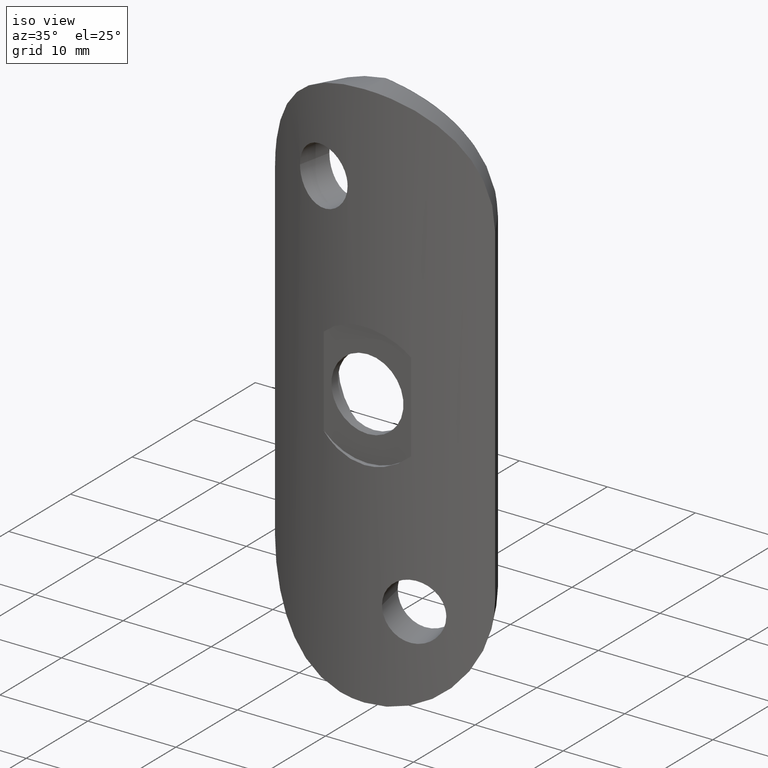
[diagram: clean part render]
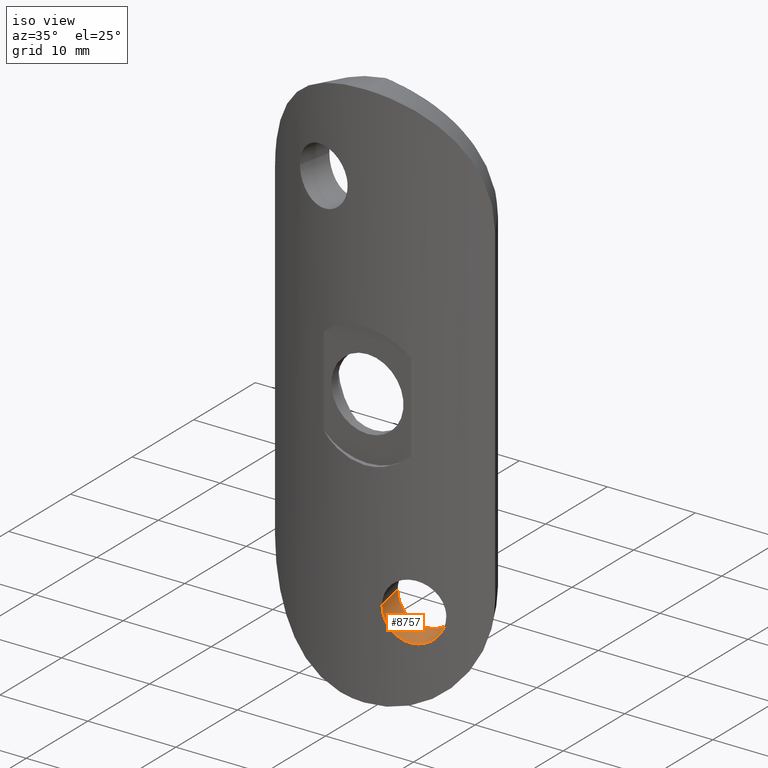
[diagram: same view with one face highlighted and labeled with its STEP entity id]
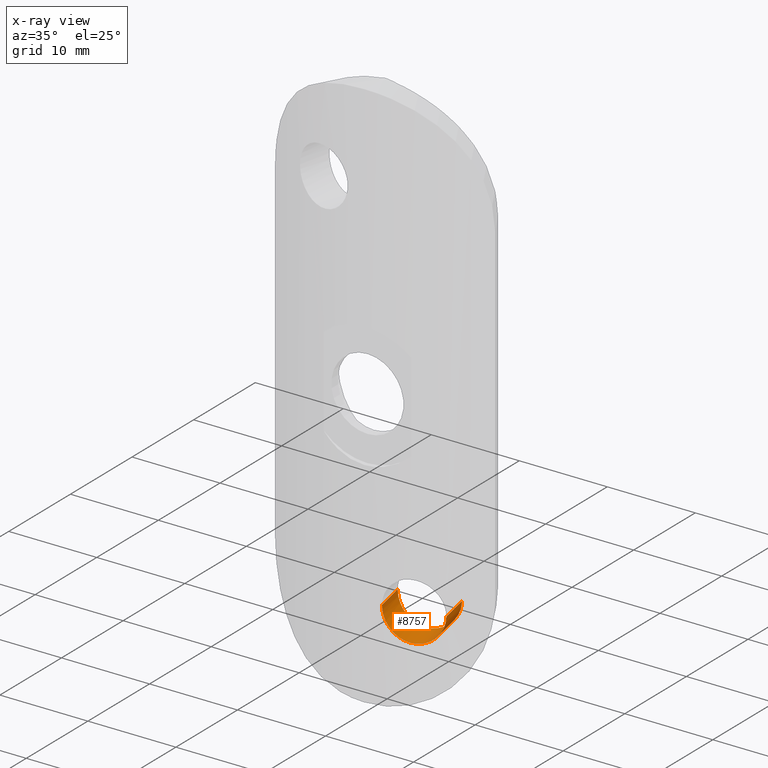
[diagram: x-ray of the same camera — body ghosted, the highlighted face saturated]
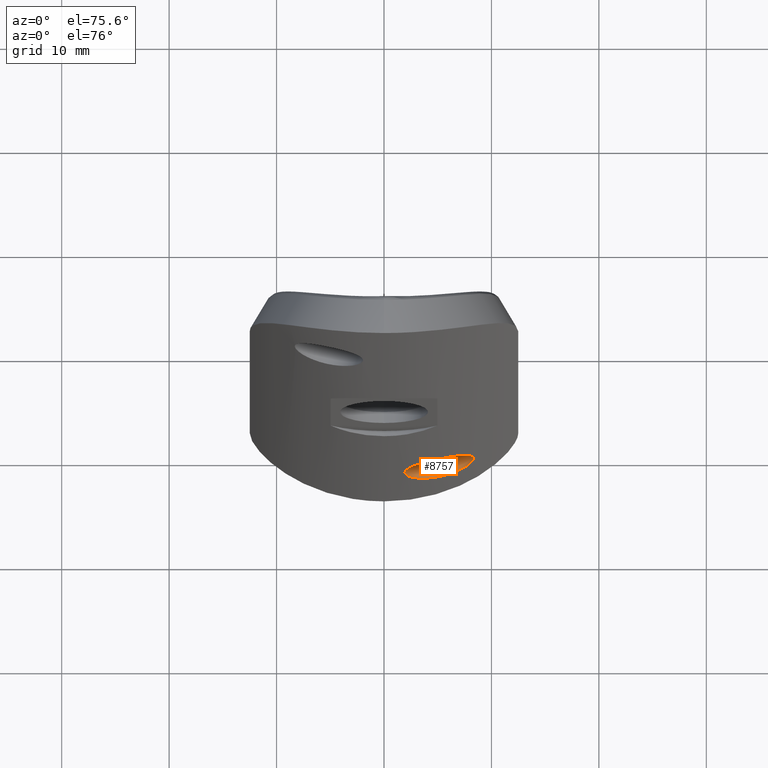
[diagram: same view with one face highlighted and labeled with its STEP entity id]
A machine part, iso view. The second image highlights one B-rep face of the part: STEP entity #8757.
The next image is the same camera in x-ray: the body ghosted, the highlighted face saturated — about 0% of this face is hidden behind the body in this view.
A second angle (auxiliary view) of the same face is appended — the face is thin or edge-on in the first view.
In plain terms, the highlighted cylindrical surface (edge-blend (fillet) strip) has radius 3.25 mm, axis along (0.2079, -0.9781, -0).
Its self-contained STEP definition (entity closure, byte-faithful):
#132 = CARTESIAN_POINT ( 'NONE',  ( 1.176646166158987095, 0.03267839806690862881, -21.00000000000000000 ) ) ;
#165 = VERTEX_POINT ( 'NONE', #10180 ) ;
#315 = CARTESIAN_POINT ( 'NONE',  ( 5.985913028591760110, 0.8618509121575981258, -23.82168527277884706 ) ) ;
#358 = CARTESIAN_POINT ( 'NONE',  ( 6.325385969303321865, 0.9648584031514629844, -23.58593826984648345 ) ) ;
#368 = LINE ( 'NONE', #8668, #11743 ) ;
#395 = CARTESIAN_POINT ( 'NONE',  ( 2.799904229232411446, 0.1849622261223008712, -23.81935026925231469 ) ) ;
#440 = CARTESIAN_POINT ( 'NONE',  ( 7.221543648351119948, 1.267713513683921267, -22.44337316984880104 ) ) ;
#473 = CARTESIAN_POINT ( 'NONE',  ( 4.195604032338668077, 0.4182042844645871837, -24.24986136147226290 ) ) ;
#539 = CARTESIAN_POINT ( 'NONE',  ( 7.545961563784556958, -2.529540464008687373, -23.14883876920004013 ) ) ;
#625 = CARTESIAN_POINT ( 'NONE',  ( 2.284191207626489639, -3.595144967301691974, -22.44085019494669808 ) ) ;
#841 = CARTESIAN_POINT ( 'NONE',  ( 7.258720291858644202, -2.618975760508660766, -23.44827756851971401 ) ) ;
#1168 = CARTESIAN_POINT ( 'NONE',  ( 1.176646166158987317, 0.03267839806690713000, -21.21222076151667224 ) ) ;
#1295 = CARTESIAN_POINT ( 'NONE',  ( 7.534605570928735396, 1.384104388382295658, -21.00000000000000000 ) ) ;
#1341 = CARTESIAN_POINT ( 'NONE',  ( 3.578598974599062288, 0.3031861338287534235, -24.14556051984719076 ) ) ;
#1485 = EDGE_CURVE ( 'NONE', #165, #12617, #8535, .T. ) ;
#1560 = CARTESIAN_POINT ( 'NONE',  ( 2.756030931761662472, -3.547474006479567343, -23.14673639676356842 ) ) ;
#1767 = CARTESIAN_POINT ( 'NONE',  ( 7.902561826490215324, -2.412996285057339207, -22.62868869679352812 ) ) ;
#1828 = CARTESIAN_POINT ( 'NONE',  ( 5.999910124638653031, -2.967232741735244428, -24.14574157051060510 ) ) ;
#1871 = CARTESIAN_POINT ( 'NONE',  ( 4.149097697526912931, -3.352675014377182183, -24.08432241776692706 ) ) ;
#2243 = EDGE_CURVE ( 'NONE', #10604, #12617, #368, .T. ) ;
#2304 = CARTESIAN_POINT ( 'NONE',  ( 7.435133305532182213, 1.346521798423605754, -21.84735998377315980 ) ) ;
#2347 = CARTESIAN_POINT ( 'NONE',  ( 3.987620783681367964, 0.3773661400878314809, -24.22854837659998140 ) ) ;
#2518 = CARTESIAN_POINT ( 'NONE',  ( 6.577282586544979992, -2.816404307680124397, -23.92112018029343545 ) ) ;
#2526 = CARTESIAN_POINT ( 'NONE',  ( 2.988850380811756580, 7.138564505706376018, -21.00000000000000000 ) ) ;
#2571 = DIRECTION ( 'NONE',  ( 0.2079116908177526257, -0.9781476007338070211, -0.000000000000000000 ) ) ;
#2634 = DIRECTION ( 'NONE',  ( 0.2079116908177526257, -0.9781476007338070211, -0.000000000000000000 ) ) ;
#2820 = CARTESIAN_POINT ( 'NONE',  ( 4.970583537830977505, -3.199761078008886983, -24.25007802996918471 ) ) ;
#2864 = CARTESIAN_POINT ( 'NONE',  ( 3.221997155239388899, -3.491291078658648850, -23.58435450196687810 ) ) ;
#2973 = ORIENTED_EDGE ( 'NONE', *, *, #1485, .F. ) ;
#3119 = B_SPLINE_CURVE_WITH_KNOTS ( 'NONE', 3,
 ( #132, #1168, #10244, #8254, #12204, #3430, #6371, #11162, #6208, #10164, #12131, #395, #5376, #10202, #1341, #2347, #473, #12084, #3312, #7229, #8335, #7308, #315, #358, #9168, #7348, #11203, #11322, #440, #11284, #2304, #9286, #10292, #1295 ),
 .UNSPECIFIED., .F., .F.,
 ( 4, 2, 2, 2, 2, 2, 2, 2, 2, 2, 2, 2, 2, 2, 2, 2, 4 ),
 ( 0.01017597693529389245, 0.01081181878188314412, 0.01144766062847239405, 0.01208350247506164571, 0.01271934432165089737, 0.01335518616824014904, 0.01399102801482940070, 0.01462686986141865063, 0.01526271170800790056, 0.01589855355459715222, 0.01653439540118640041, 0.01717023724777565208, 0.01780607909436490027, 0.01844192094095414847, 0.01907776278754340360, 0.01971360463413265179, 0.02034944648072189999 ),
 .UNSPECIFIED. ) ;
#3147 = DIRECTION ( 'NONE',  ( 0.2079116908177526257, -0.9781476007338070211, -0.000000000000000000 ) ) ;
#3312 = CARTESIAN_POINT ( 'NONE',  ( 4.821778409646167773, 0.5545708960233531881, -24.22919306354635793 ) ) ;
#3430 = CARTESIAN_POINT ( 'NONE',  ( 1.507974647129322276, 0.05354142547088013709, -22.43934667913372394 ) ) ;
#3509 = CARTESIAN_POINT ( 'NONE',  ( 3.058423131052784960, -3.511924735836546851, -23.44985879542735674 ) ) ;
#3545 = CARTESIAN_POINT ( 'NONE',  ( 7.677180134385636734, -2.487232471604329476, -22.98182299338827406 ) ) ;
#3584 = CARTESIAN_POINT ( 'NONE',  ( 2.058790652408607702, -3.614776693185831835, -21.84477542463335098 ) ) ;
#3852 = CARTESIAN_POINT ( 'NONE',  ( 3.759832274280712205, -3.415290437744620711, -23.92128727752011841 ) ) ;
#4484 = CARTESIAN_POINT ( 'NONE',  ( 2.120598218914843791, -3.609671634595242651, -22.04738836260126789 ) ) ;
#5376 = CARTESIAN_POINT ( 'NONE',  ( 2.985103256080854806, 0.2102872747211994575, -23.91931735677275483 ) ) ;
#5454 = ORIENTED_EDGE ( 'NONE', *, *, #12526, .F. ) ;
#5484 = CARTESIAN_POINT ( 'NONE',  ( 1.953734233894720340, -3.623233523119179011, -21.00000000000000000 ) ) ;
#5601 = CYLINDRICAL_SURFACE ( 'NONE', #10128, 3.250000000000001332 ) ;
#5742 = CARTESIAN_POINT ( 'NONE',  ( 5.385762887995411141, -3.111491099576042085, -24.24992152820590618 ) ) ;
#5789 = CARTESIAN_POINT ( 'NONE',  ( 6.759552268914647222, -2.765603910461961412, -23.82031223488645466 ) ) ;
#6208 = CARTESIAN_POINT ( 'NONE',  ( 1.982569704414506750, 0.09236896650865825120, -23.14671983729763127 ) ) ;
#6371 = CARTESIAN_POINT ( 'NONE',  ( 1.609742144947636122, 0.06086556064627795387, -22.62871471062484829 ) ) ;
#6455 = DIRECTION ( 'NONE',  ( 0.9781476007338070211, 0.2079116908177525425, 0.000000000000000000 ) ) ;
#6496 = CARTESIAN_POINT ( 'NONE',  ( 1.953734233894720340, -3.623233523119179011, -21.00000000000000000 ) ) ;
#6523 = CARTESIAN_POINT ( 'NONE',  ( 3.571520614716587882, -3.443160537927625331, -23.81957001959845854 ) ) ;
#6742 = CARTESIAN_POINT ( 'NONE',  ( 8.153353694801166895, -2.327421954371523771, -22.04859300684900703 ) ) ;
#7112 = EDGE_CURVE ( 'NONE', #10996, #165, #12537, .T. ) ;
#7144 = ORIENTED_EDGE ( 'NONE', *, *, #7112, .F. ) ;
#7229 = CARTESIAN_POINT ( 'NONE',  ( 5.226049793098979990, 0.6531828869017767270, -24.14674081332866251 ) ) ;
#7308 = CARTESIAN_POINT ( 'NONE',  ( 5.806220803100975658, 0.8096448553228241529, -23.92135699252498426 ) ) ;
#7348 = CARTESIAN_POINT ( 'NONE',  ( 6.771192789185788818, 1.109862626452452261, -23.15014060816847064 ) ) ;
#7367 = VECTOR ( 'NONE', #3147, 1000.000000000000227 ) ;
#7457 = CARTESIAN_POINT ( 'NONE',  ( 4.348998942776356458, -3.318150659584134132, -24.14578461991183644 ) ) ;
#7705 = CARTESIAN_POINT ( 'NONE',  ( 7.997800242670248139, -2.380753838033142333, -22.44209386538071271 ) ) ;
#7761 = CARTESIAN_POINT ( 'NONE',  ( 5.591631711446507502, -3.064948273187957817, -24.22925629118184432 ) ) ;
#7809 = CARTESIAN_POINT ( 'NONE',  ( 6.198865727045849816, -2.916848587476775112, -24.08324701962425962 ) ) ;
#8142 = CARTESIAN_POINT ( 'NONE',  ( 6.167830083196631286, 7.814277500864071691, -21.00000000000000000 ) ) ;
#8254 = CARTESIAN_POINT ( 'NONE',  ( 1.281740163546241096, 0.03874000994394175695, -21.84344921520782989 ) ) ;
#8335 = CARTESIAN_POINT ( 'NONE',  ( 5.426425943715761591, 0.7053010654512409383, -24.08416501228092699 ) ) ;
#8483 = CARTESIAN_POINT ( 'NONE',  ( 7.101665944464480518, -2.666463049278420705, -23.58272619586211505 ) ) ;
#8535 = B_SPLINE_CURVE_WITH_KNOTS ( 'NONE', 3,
 ( #11634, #12555, #10643, #12590, #6742, #7705, #1767, #3545, #539, #841, #8483, #5789, #2518, #7809, #1828, #7761, #5742, #2820, #8732, #7457, #1871, #3852, #6523, #2864, #3509, #1560, #12647, #9695, #625, #4484, #3584, #10756, #10448, #5484 ),
 .UNSPECIFIED., .F., .F.,
 ( 4, 2, 2, 2, 2, 2, 2, 2, 2, 2, 2, 2, 2, 2, 2, 2, 4 ),
 ( 0.000000000000000000, 0.0006357390089244240993, 0.001271478017848848199, 0.001907217026773272081, 0.002542956035697696397, 0.003178695044622120713, 0.003814434053546544162, 0.004450173062470968478, 0.005085912071395392794, 0.005721651080319816243, 0.006357390089244241427, 0.006993129098168664008, 0.007628868107093086590, 0.008264607116017510038, 0.008900346124941931752, 0.009536085133866356936, 0.01017182414279077865 ),
 .UNSPECIFIED. ) ;
#8668 = CARTESIAN_POINT ( 'NONE',  ( -0.1901293215731173492, 6.462851510548680345, -21.00000000000000000 ) ) ;
#8691 = CARTESIAN_POINT ( 'NONE',  ( 1.176646166158987095, 0.03267839806690862881, -21.00000000000000000 ) ) ;
#8732 = CARTESIAN_POINT ( 'NONE',  ( 4.759112924623092766, -3.241856470837505277, -24.22888309544432417 ) ) ;
#8757 = ADVANCED_FACE ( 'NONE', ( #11175 ), #5601, .F. ) ;
#8904 = EDGE_LOOP ( 'NONE', ( #5454, #11358, #2973, #7144 ) ) ;
#9168 = CARTESIAN_POINT ( 'NONE',  ( 6.485148419938054687, 1.015711024469835744, -23.44911124235425959 ) ) ;
#9286 = CARTESIAN_POINT ( 'NONE',  ( 7.514624287274295433, 1.376472922494084372, -21.42748551724601214 ) ) ;
#9655 = CARTESIAN_POINT ( 'NONE',  ( 7.534605570928735396, 1.384104388382295658, -21.00000000000000000 ) ) ;
#9695 = CARTESIAN_POINT ( 'NONE',  ( 2.386304544388235360, -3.585672437300118975, -22.63098486282260069 ) ) ;
#10128 = AXIS2_PLACEMENT_3D ( 'NONE', #2526, #2571, #6455 ) ;
#10164 = CARTESIAN_POINT ( 'NONE',  ( 2.282176914259903100, 0.1226581606956864551, -23.44646899011932817 ) ) ;
#10180 = CARTESIAN_POINT ( 'NONE',  ( 8.311693638664468864, -2.271807532803787666, -21.00000000000000000 ) ) ;
#10202 = CARTESIAN_POINT ( 'NONE',  ( 3.375010264648535596, 0.2694436898415824566, -24.08293634492092750 ) ) ;
#10244 = CARTESIAN_POINT ( 'NONE',  ( 1.197452077733473397, 0.03380311120756252646, -21.42336598915113655 ) ) ;
#10292 = CARTESIAN_POINT ( 'NONE',  ( 7.534605570928732732, 1.384104388382295436, -21.21502402863166026 ) ) ;
#10448 = CARTESIAN_POINT ( 'NONE',  ( 1.953734233894721228, -3.623233523119181232, -21.21222590136937214 ) ) ;
#10604 = VERTEX_POINT ( 'NONE', #8691 ) ;
#10643 = CARTESIAN_POINT ( 'NONE',  ( 8.291618171501472290, -2.278943904341555804, -21.42632512503336173 ) ) ;
#10756 = CARTESIAN_POINT ( 'NONE',  ( 1.975131184393454697, -3.621575656826467426, -21.42781461761315143 ) ) ;
#10996 = VERTEX_POINT ( 'NONE', #9655 ) ;
#11162 = CARTESIAN_POINT ( 'NONE',  ( 1.847899157485848765, 0.08035172352403245621, -22.98330142292234157 ) ) ;
#11175 = FACE_OUTER_BOUND ( 'NONE', #8904, .T. ) ;
#11203 = CARTESIAN_POINT ( 'NONE',  ( 6.899475862108369384, 1.153762364859062695, -22.98681174942989713 ) ) ;
#11284 = CARTESIAN_POINT ( 'NONE',  ( 7.375669697770613098, 1.324229983545107903, -22.05261775558886228 ) ) ;
#11322 = CARTESIAN_POINT ( 'NONE',  ( 7.126047392086962695, 1.233181047996464219, -22.63142311553909281 ) ) ;
#11358 = ORIENTED_EDGE ( 'NONE', *, *, #2243, .T. ) ;
#11634 = CARTESIAN_POINT ( 'NONE',  ( 8.311693638664468864, -2.271807532803787666, -21.00000000000000000 ) ) ;
#11743 = VECTOR ( 'NONE', #2634, 1000.000000000000227 ) ;
#12084 = CARTESIAN_POINT ( 'NONE',  ( 4.615767281722258808, 0.5074694935731745016, -24.25013729733753465 ) ) ;
#12131 = CARTESIAN_POINT ( 'NONE',  ( 2.448922582269703607, 0.1411763263844769689, -23.58365545846556088 ) ) ;
#12204 = CARTESIAN_POINT ( 'NONE',  ( 1.344665576063432288, 0.04252916180171267824, -22.04818896017631502 ) ) ;
#12526 = EDGE_CURVE ( 'NONE', #10604, #10996, #3119, .T. ) ;
#12537 = LINE ( 'NONE', #8142, #7367 ) ;
#12555 = CARTESIAN_POINT ( 'NONE',  ( 8.311693638664470640, -2.271807532803787666, -21.21498220251860189 ) ) ;
#12590 = CARTESIAN_POINT ( 'NONE',  ( 8.212934390010694585, -2.306583066676674676, -21.84204442107509081 ) ) ;
#12617 = VERTEX_POINT ( 'NONE', #6496 ) ;
#12647 = CARTESIAN_POINT ( 'NONE',  ( 2.621811538668784802, -3.561868100032556939, -22.98278892866948908 ) ) ;